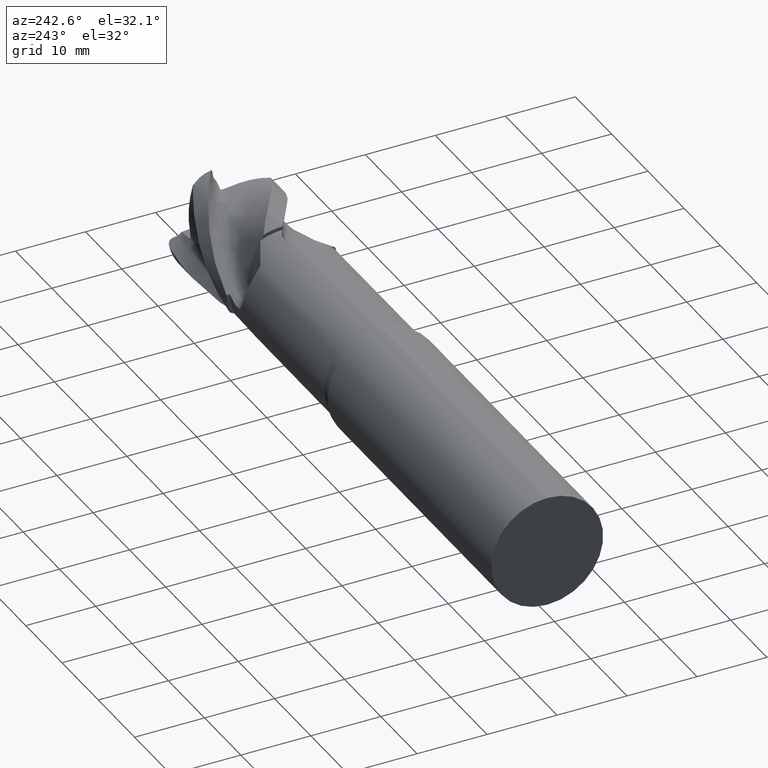
[diagram: clean part render]
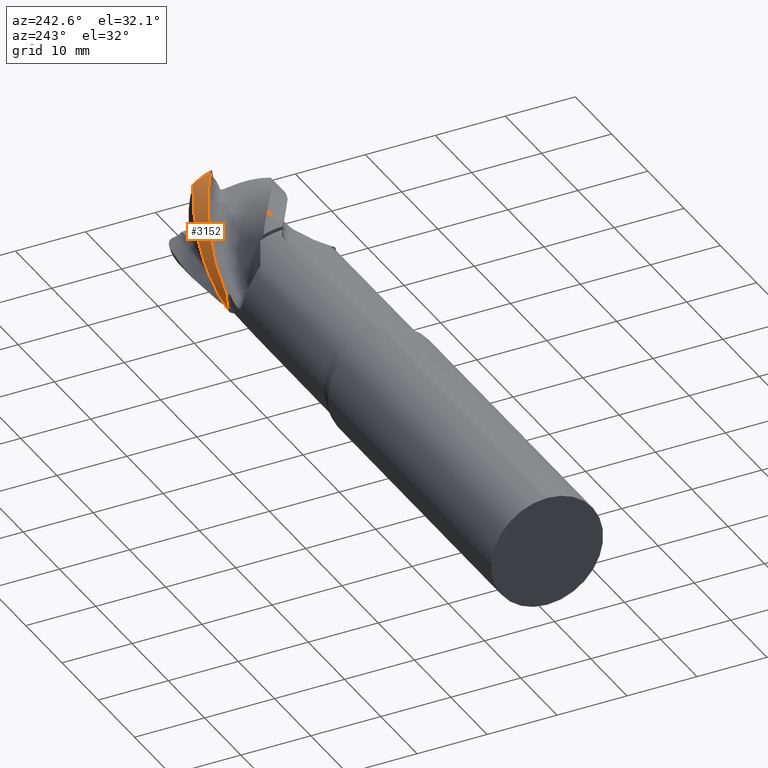
[diagram: same view with one face highlighted and labeled with its STEP entity id]
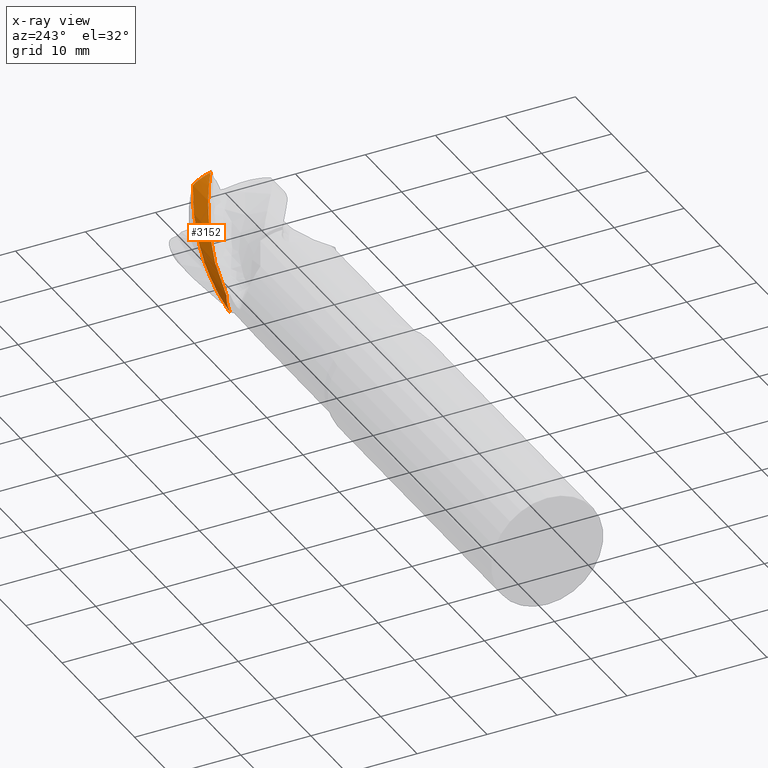
[diagram: x-ray of the same camera — body ghosted, the highlighted face saturated]
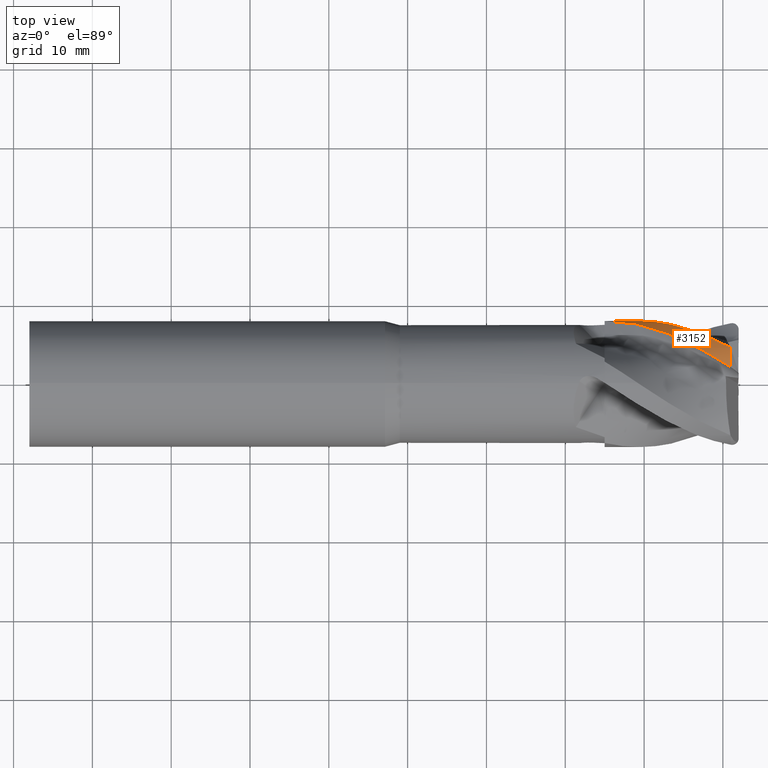
[diagram: same view with one face highlighted and labeled with its STEP entity id]
A machine part, auxiliary view. The second image highlights one B-rep face of the part: STEP entity #3152.
The next image is the same camera in x-ray: the body ghosted, the highlighted face saturated — about 0% of this face is hidden behind the body in this view.
A second angle (top view) of the same face is appended — the face is thin or edge-on in the first view.
In plain terms, the highlighted cylindrical surface (partial cylindrical patch) has radius 8 mm, axis along (-1, -0, -0).
Its self-contained STEP definition (entity closure, byte-faithful):
#24 = B_SPLINE_CURVE_WITH_KNOTS ( 'NONE', 3,
 ( #260, #253, #252, #251, #250, #249, #248, #247, #246, #245, #244, #243, #242, #241, #240, #239, #238, #237, #236, #235, #234, #233, #232, #231, #230, #229 ),
 .UNSPECIFIED., .F., .F.,
 ( 4, 2, 2, 2, 2, 2, 2, 2, 2, 2, 2, 2, 4 ),
 ( 5.357508023025369600E-005, 0.001243000614516580200, 0.002432426148802906300, 0.004811277217375577700, 0.006000702751661913400, 0.007190128285948248200, 0.009568979354520919600, 0.01194783042309358900, 0.01313725595737992800, 0.01432668149166626800, 0.01670553256023895500, 0.01789495809452530000, 0.01908438362881164200 ),
 .UNSPECIFIED. ) ;
#36 = B_SPLINE_CURVE_WITH_KNOTS ( 'NONE', 3,
 ( #656, #658, #586, #583, #607, #581, #612, #596, #590, #593, #608, #614, #605, #619 ),
 .UNSPECIFIED., .F., .F.,
 ( 4, 2, 2, 2, 2, 2, 4 ),
 ( 0.0000000000000000000, 0.004771799707058796200, 0.007157699560588193900, 0.009543599414117590700, 0.01431539912117638600, 0.01670129897470577100, 0.01908719882823516100 ),
 .UNSPECIFIED. ) ;
#74 =( BOUNDED_CURVE ( )  B_SPLINE_CURVE ( 3, ( #394, #338, #336, #337 ),
 .UNSPECIFIED., .F., .T. ) 
 B_SPLINE_CURVE_WITH_KNOTS ( ( 4, 4 ),
 ( 1.138046724000469900, 1.157835611299588500 ),
 .UNSPECIFIED. ) 
 CURVE ( )  GEOMETRIC_REPRESENTATION_ITEM ( )  RATIONAL_B_SPLINE_CURVE ( ( 1.000000000000000000, 0.9999673669278547100, 0.9999673669278547100, 1.000000000000000000 ) ) 
 REPRESENTATION_ITEM ( '' )  );
#229 = CARTESIAN_POINT ( 'NONE',  ( 24.99999999999999300, 7.528066603737396900, -2.707067270995302100 ) ) ;
#230 = CARTESIAN_POINT ( 'NONE',  ( 25.33639450635524100, 7.601982517599908300, -2.501514964041188000 ) ) ;
#231 = CARTESIAN_POINT ( 'NONE',  ( 25.67506491012491700, 7.666234315150479300, -2.296885944676665800 ) ) ;
#232 = CARTESIAN_POINT ( 'NONE',  ( 26.34983989586510900, 7.779199437633978100, -1.879066184879916200 ) ) ;
#233 = CARTESIAN_POINT ( 'NONE',  ( 26.68559653088611900, 7.828121930102809300, -1.664183001731068400 ) ) ;
#234 = CARTESIAN_POINT ( 'NONE',  ( 27.68573733586724800, 7.948191198449680300, -1.011063171179085400 ) ) ;
#235 = CARTESIAN_POINT ( 'NONE',  ( 28.34295415541722500, 7.992241120307233400, -0.5646330718079033400 ) ) ;
#236 = CARTESIAN_POINT ( 'NONE',  ( 29.33011876357635800, 8.002451657668203200, 0.09720917863508678200 ) ) ;
#237 = CARTESIAN_POINT ( 'NONE',  ( 29.65939457544971300, 7.996673292723077300, 0.3165395395344436900 ) ) ;
#238 = CARTESIAN_POINT ( 'NONE',  ( 30.32076287218950500, 7.967801541570894500, 0.7490791845858036900 ) ) ;
#239 = CARTESIAN_POINT ( 'NONE',  ( 30.65407510667831700, 7.945048280511469900, 0.9604428447215936900 ) ) ;
#240 = CARTESIAN_POINT ( 'NONE',  ( 31.64962486028925100, 7.850444285179818800, 1.598591591316235200 ) ) ;
#241 = CARTESIAN_POINT ( 'NONE',  ( 32.30827213096414100, 7.751241440458543700, 2.028102600642081900 ) ) ;
#242 = CARTESIAN_POINT ( 'NONE',  ( 33.63267961144417500, 7.480979759524491800, 2.868777764937167100 ) ) ;
#243 = CARTESIAN_POINT ( 'NONE',  ( 34.30174501484203400, 7.308937799141565600, 3.281438009600037300 ) ) ;
#244 = CARTESIAN_POINT ( 'NONE',  ( 35.30700307742183200, 7.010478385566117700, 3.860089972546489400 ) ) ;
#245 = CARTESIAN_POINT ( 'NONE',  ( 35.64348294904037600, 6.905206146012958800, 4.045379322781693400 ) ) ;
#246 = CARTESIAN_POINT ( 'NONE',  ( 36.31007556966108800, 6.676065149011082900, 4.413289012775448900 ) ) ;
#247 = CARTESIAN_POINT ( 'NONE',  ( 36.64111705438471500, 6.552770684238606900, 4.594524380342261500 ) ) ;
#248 = CARTESIAN_POINT ( 'NONE',  ( 37.63110863885857800, 6.158909505455818900, 5.124613682094519600 ) ) ;
#249 = CARTESIAN_POINT ( 'NONE',  ( 38.28698816077650900, 5.864084725896512800, 5.459493391007117500 ) ) ;
#250 = CARTESIAN_POINT ( 'NONE',  ( 39.27934701309301600, 5.388561326065723900, 5.917076666307846900 ) ) ;
#251 = CARTESIAN_POINT ( 'NONE',  ( 39.61154810159101900, 5.224584669751423300, 6.062230754456332500 ) ) ;
#252 = CARTESIAN_POINT ( 'NONE',  ( 40.28094247285049800, 4.888860455447622900, 6.336084764177188700 ) ) ;
#253 = CARTESIAN_POINT ( 'NONE',  ( 40.61848861705961200, 4.717725205090189000, 6.464585507284725800 ) ) ;
#260 = CARTESIAN_POINT ( 'NONE',  ( 40.95458504108302100, 4.537671349305876200, 6.588591558572257900 ) ) ;
#299 = CARTESIAN_POINT ( 'NONE',  ( 24.99999999999999600, 8.000000000000016000, 1.376076468354638900E-013 ) ) ;
#308 = CARTESIAN_POINT ( 'NONE',  ( 24.99999999999999300, 7.528066603737396900, -2.707067270995302100 ) ) ;
#309 = CARTESIAN_POINT ( 'NONE',  ( 40.99999999999999300, 4.406410515660533100, 6.677091160638482000 ) ) ;
#336 = CARTESIAN_POINT ( 'NONE',  ( 40.98479452268932000, 4.450455302482872400, 6.648024699338974700 ) ) ;
#337 = CARTESIAN_POINT ( 'NONE',  ( 40.99999999999999300, 4.406410515660533100, 6.677091160638482000 ) ) ;
#338 = CARTESIAN_POINT ( 'NONE',  ( 40.96965570902433000, 4.494210341559326400, 6.618523869280838100 ) ) ;
#393 = CARTESIAN_POINT ( 'NONE',  ( 40.99999999999998600, 2.000542796254103400, 7.745826522738298100 ) ) ;
#394 = CARTESIAN_POINT ( 'NONE',  ( 40.95458504108302100, 4.537671349305876200, 6.588591558572257900 ) ) ;
#418 = CARTESIAN_POINT ( 'NONE',  ( 40.95458504108302100, 4.537671349305876200, 6.588591558572257900 ) ) ;
#581 = CARTESIAN_POINT ( 'NONE',  ( 31.66456511648774400, 6.834954708148562700, 4.180618592958217600 ) ) ;
#583 = CARTESIAN_POINT ( 'NONE',  ( 29.66201325733090100, 7.428481587251594600, 3.001550431632992800 ) ) ;
#586 = CARTESIAN_POINT ( 'NONE',  ( 27.66898196080302700, 7.853224666013415100, 1.758816956993029900 ) ) ;
#590 = CARTESIAN_POINT ( 'NONE',  ( 35.65775827175667000, 5.137581406852519600, 6.194429172402046800 ) ) ;
#593 = CARTESIAN_POINT ( 'NONE',  ( 37.64917986814184300, 4.042167640110999800, 6.917536023775031900 ) ) ;
#596 = CARTESIAN_POINT ( 'NONE',  ( 34.33784855928637100, 5.784492767498559100, 5.595710114880615600 ) ) ;
#605 = CARTESIAN_POINT ( 'NONE',  ( 40.32811515339460600, 2.429284514067313600, 7.635093839465968200 ) ) ;
#607 = CARTESIAN_POINT ( 'NONE',  ( 30.32720734910178400, 7.252765827094573400, 3.404638826595165900 ) ) ;
#608 = CARTESIAN_POINT ( 'NONE',  ( 38.31493670163979500, 3.656180945676409600, 7.129344742716932100 ) ) ;
#612 = CARTESIAN_POINT ( 'NONE',  ( 32.33780543952683900, 6.592095557604759300, 4.553828963209182000 ) ) ;
#614 = CARTESIAN_POINT ( 'NONE',  ( 39.65595818607027200, 2.848845765767588300, 7.488610910636287700 ) ) ;
#619 = CARTESIAN_POINT ( 'NONE',  ( 40.99999999999998600, 2.000542796254103400, 7.745826522738298100 ) ) ;
#656 = CARTESIAN_POINT ( 'NONE',  ( 24.99999999999999600, 8.000000000000016000, 1.376076468354638900E-013 ) ) ;
#658 = CARTESIAN_POINT ( 'NONE',  ( 26.34379014981319900, 8.000000000000005300, 0.8855962627994792300 ) ) ;
#694 = FACE_OUTER_BOUND ( 'NONE', #2098, .T. ) ;
#700 = CIRCLE ( 'NONE', #1795, 8.000000000000017800 ) ;
#706 = CIRCLE ( 'NONE', #1749, 8.000000000000016000 ) ;
#734 = CYLINDRICAL_SURFACE ( 'NONE', #1910, 8.000000000000017800 ) ;
#954 = VERTEX_POINT ( 'NONE', #393 ) ;
#957 = VERTEX_POINT ( 'NONE', #418 ) ;
#958 = VERTEX_POINT ( 'NONE', #299 ) ;
#964 = VERTEX_POINT ( 'NONE', #309 ) ;
#965 = VERTEX_POINT ( 'NONE', #308 ) ;
#1078 = CARTESIAN_POINT ( 'NONE',  ( 40.99999999999999300, 0.0000000000000000000, 0.0000000000000000000 ) ) ;
#1079 = DIRECTION ( 'NONE',  ( -1.000000000000000000, -0.0000000000000000000, -0.0000000000000000000 ) ) ;
#1080 = DIRECTION ( 'NONE',  ( 0.0000000000000000000, 0.0000000000000000000, 1.000000000000000000 ) ) ;
#1493 = DIRECTION ( 'NONE',  ( 0.0000000000000000000, 0.0000000000000000000, 1.000000000000000000 ) ) ;
#1494 = DIRECTION ( 'NONE',  ( -1.000000000000000000, -0.0000000000000000000, -0.0000000000000000000 ) ) ;
#1495 = CARTESIAN_POINT ( 'NONE',  ( -39.76065438357068200, 0.0000000000000000000, 0.0000000000000000000 ) ) ;
#1748 = EDGE_CURVE ( 'NONE', #957, #964, #74, .T. ) ;
#1749 = AXIS2_PLACEMENT_3D ( 'NONE', #2189, #2188, #2190 ) ;
#1795 = AXIS2_PLACEMENT_3D ( 'NONE', #1078, #1079, #1080 ) ;
#1820 = EDGE_CURVE ( 'NONE', #958, #965, #706, .T. ) ;
#1849 = EDGE_CURVE ( 'NONE', #958, #954, #36, .T. ) ;
#1860 = EDGE_CURVE ( 'NONE', #957, #965, #24, .T. ) ;
#1879 = EDGE_CURVE ( 'NONE', #954, #964, #700, .T. ) ;
#1910 = AXIS2_PLACEMENT_3D ( 'NONE', #1495, #1494, #1493 ) ;
#1979 = ORIENTED_EDGE ( 'NONE', *, *, #1849, .T. ) ;
#2007 = ORIENTED_EDGE ( 'NONE', *, *, #1879, .T. ) ;
#2038 = ORIENTED_EDGE ( 'NONE', *, *, #1820, .F. ) ;
#2089 = ORIENTED_EDGE ( 'NONE', *, *, #1748, .F. ) ;
#2090 = ORIENTED_EDGE ( 'NONE', *, *, #1860, .T. ) ;
#2098 = EDGE_LOOP ( 'NONE', ( #2089, #2090, #2038, #1979, #2007 ) ) ;
#2188 = DIRECTION ( 'NONE',  ( -1.000000000000000000, -0.0000000000000000000, -0.0000000000000000000 ) ) ;
#2189 = CARTESIAN_POINT ( 'NONE',  ( 24.99999999999999300, 0.0000000000000000000, 0.0000000000000000000 ) ) ;
#2190 = DIRECTION ( 'NONE',  ( 0.0000000000000000000, 0.0000000000000000000, 1.000000000000000000 ) ) ;
#3152 = ADVANCED_FACE ( 'NONE', ( #694 ), #734, .T. ) ;